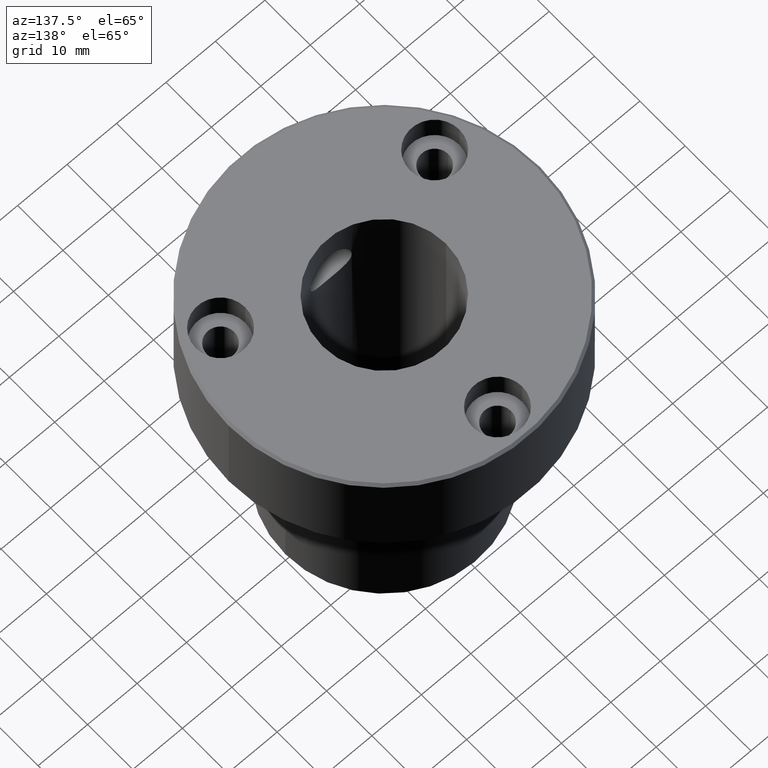
[diagram: clean part render]
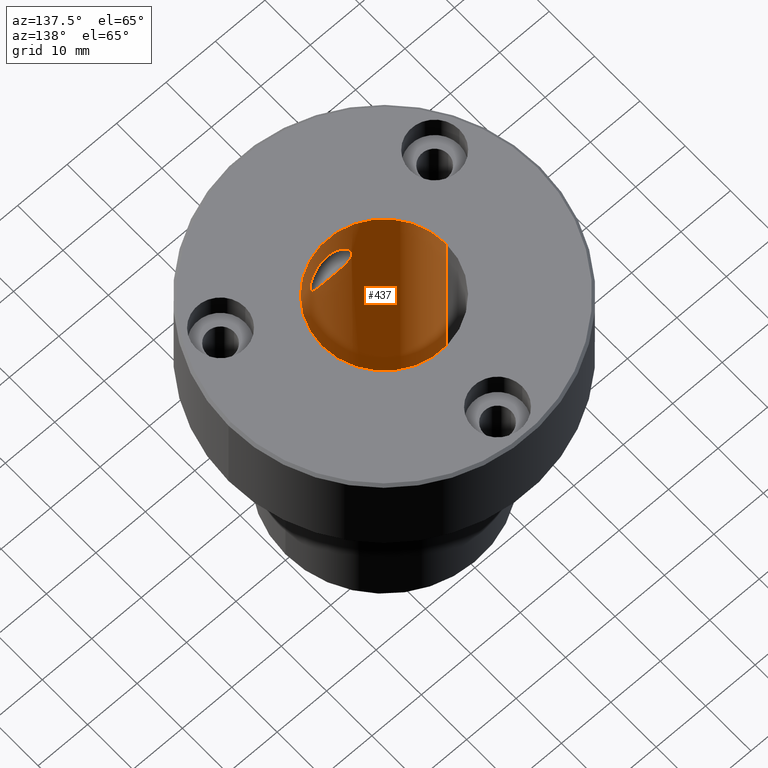
[diagram: same view with one face highlighted and labeled with its STEP entity id]
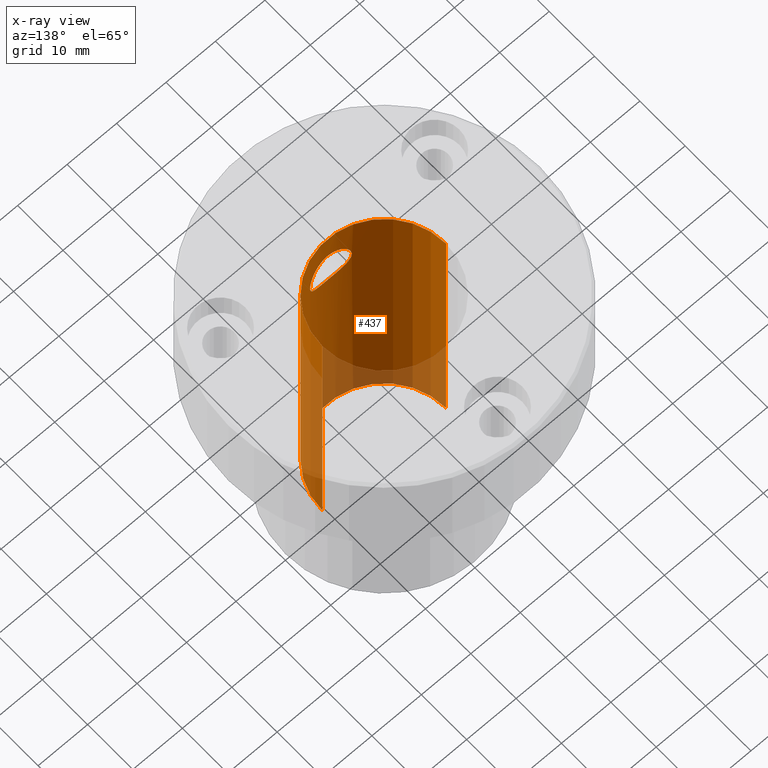
[diagram: x-ray of the same camera — body ghosted, the highlighted face saturated]
A machine part, auxiliary view. The second image highlights one B-rep face of the part: STEP entity #437.
The next image is the same camera in x-ray: the body ghosted, the highlighted face saturated — about 26% of this face is hidden behind the body in this view.
In plain terms, the highlighted cylindrical surface (partial cylindrical patch) has radius 12.5 mm, axis along (-0, -0, -1).
Its self-contained STEP definition (entity closure, byte-faithful):
#2 = CARTESIAN_POINT ( 'NONE',  ( 3.997887047556716755, -11.84395250877099315, -11.61754209422305451 ) ) ;
#17 = CARTESIAN_POINT ( 'NONE',  ( -0.5551595441013111865, -12.49067315568301595, -6.061012140902603207 ) ) ;
#24 = CARTESIAN_POINT ( 'NONE',  ( 4.189025247396950036, -11.77732597393059422, -10.80443429185321946 ) ) ;
#39 = VERTEX_POINT ( 'NONE', #786 ) ;
#55 = CARTESIAN_POINT ( 'NONE',  ( 2.575482729304202856, -12.23399655039528078, -6.900355630761246140 ) ) ;
#56 = DIRECTION ( 'NONE',  ( -0.000000000000000000, -0.000000000000000000, -1.000000000000000000 ) ) ;
#66 = CARTESIAN_POINT ( 'NONE',  ( 2.786254725433419566, -12.18715360744156584, -7.073512358405147360 ) ) ;
#78 = CARTESIAN_POINT ( 'NONE',  ( 0.000000000000000000, 0.000000000000000000, 0.000000000000000000 ) ) ;
#98 = CARTESIAN_POINT ( 'NONE',  ( 3.787002939515706768, -11.91305672827691531, -12.12400132353025128 ) ) ;
#100 = CARTESIAN_POINT ( 'NONE',  ( 0.000000000000000000, 0.000000000000000000, 0.000000000000000000 ) ) ;
#111 = EDGE_CURVE ( 'NONE', #147, #334, #1177, .T. ) ;
#112 = CARTESIAN_POINT ( 'NONE',  ( -4.189124788445370839, -11.77729014235656280, -10.80362458089182986 ) ) ;
#122 = CARTESIAN_POINT ( 'NONE',  ( 3.655198727722483110, -11.95469286503901074, -8.130474772784408444 ) ) ;
#146 = CARTESIAN_POINT ( 'NONE',  ( -3.348655338189170827, -12.04417417198613194, -12.82695504705460365 ) ) ;
#147 = VERTEX_POINT ( 'NONE', #667 ) ;
#167 = ORIENTED_EDGE ( 'NONE', *, *, #251, .T. ) ;
#175 = DIRECTION ( 'NONE',  ( -1.000000000000000000, 0.000000000000000000, 0.000000000000000000 ) ) ;
#192 = CARTESIAN_POINT ( 'NONE',  ( 2.575404253866937498, -12.23402530770396446, -13.59976436228301466 ) ) ;
#197 = CARTESIAN_POINT ( 'NONE',  ( 0.5565299237593437365, -12.49055583874920927, -14.43863110669369476 ) ) ;
#225 = CARTESIAN_POINT ( 'NONE',  ( 3.985586130678573467E-15, -12.50000000000000000, -6.033599999999989194 ) ) ;
#237 = ORIENTED_EDGE ( 'NONE', *, *, #111, .T. ) ;
#251 = EDGE_CURVE ( 'NONE', #411, #352, #963, .T. ) ;
#277 = CARTESIAN_POINT ( 'NONE',  ( 1.877113919933425246, -12.36092773482146967, -14.03559633629362935 ) ) ;
#286 = CARTESIAN_POINT ( 'NONE',  ( 3.657565027193406593, -11.95399429861023854, -12.36587499254165756 ) ) ;
#290 = CARTESIAN_POINT ( 'NONE',  ( -2.788668295020203747, -12.18658724808627447, -13.42427693191812921 ) ) ;
#293 = CARTESIAN_POINT ( 'NONE',  ( -4.216440303120227107, -11.76739695820874232, -9.972775020323856765 ) ) ;
#297 = CARTESIAN_POINT ( 'NONE',  ( 1.367298144276453797, -12.42765411968584743, -14.24809855736770636 ) ) ;
#299 = CARTESIAN_POINT ( 'NONE',  ( -1.365816132105685865, -12.42780682705813078, -6.251435308841912786 ) ) ;
#301 = DIRECTION ( 'NONE',  ( -0.000000000000000000, -0.000000000000000000, -1.000000000000000000 ) ) ;
#304 = CARTESIAN_POINT ( 'NONE',  ( 2.789934311408776235, -12.18629192073936984, -13.42313091155149607 ) ) ;
#330 = B_SPLINE_CURVE_WITH_KNOTS ( 'NONE', 3,
 ( #225, #1183, #17, #396, #299, #520, #514, #896, #765, #1189, #899, #675, #1163, #1076, #293, #585, #112, #812, #713, #623, #1011, #146, #463, #290, #851, #1205, #1120, #538, #942, #1053, #570, #1131 ),
 .UNSPECIFIED., .F., .F.,
 ( 4, 2, 2, 2, 2, 2, 2, 2, 2, 2, 2, 2, 2, 2, 2, 4 ),
 ( 0.01328052445276271115, 0.01411034831862422421, 0.01494017218448573554, 0.01576999605034724861, 0.01659981991620875993, 0.01825946764793178606, 0.01908929151379330086, 0.01991911537965481566, 0.02074893924551633045, 0.02157876311137784525, 0.02240858697723936352, 0.02323841084310087832, 0.02406823470896239311, 0.02489805857482391138, 0.02572788244068542618, 0.02655770630654694098 ),
 .UNSPECIFIED. ) ;
#333 = ORIENTED_EDGE ( 'NONE', *, *, #613, .T. ) ;
#334 = VERTEX_POINT ( 'NONE', #937 ) ;
#350 = EDGE_CURVE ( 'NONE', #39, #931, #984, .T. ) ;
#352 = VERTEX_POINT ( 'NONE', #473 ) ;
#353 = EDGE_LOOP ( 'NONE', ( #167, #333 ) ) ;
#356 = LINE ( 'NONE', #1017, #986 ) ;
#392 = CARTESIAN_POINT ( 'NONE',  ( 4.079951695410066748, -11.81555473867688555, -11.34969271636779986 ) ) ;
#396 = CARTESIAN_POINT ( 'NONE',  ( -1.102107070064511474, -12.45433571121401961, -6.170639583318731525 ) ) ;
#401 = EDGE_CURVE ( 'NONE', #39, #147, #495, .T. ) ;
#411 = VERTEX_POINT ( 'NONE', #889 ) ;
#429 = CARTESIAN_POINT ( 'NONE',  ( 0.2766148255342067430, -12.50000000000000355, -6.033599999999990970 ) ) ;
#435 = CARTESIAN_POINT ( 'NONE',  ( 2.119914058455546702, -12.32110982293357893, -6.594977007722158113 ) ) ;
#437 = ADVANCED_FACE ( 'NONE', ( #1109, #726 ), #911, .F. ) ;
#463 = CARTESIAN_POINT ( 'NONE',  ( -3.175073777574319855, -12.09167011300878158, -13.03776100251050529 ) ) ;
#473 = CARTESIAN_POINT ( 'NONE',  ( 3.985586130678573467E-15, -12.50000000000000000, -6.033599999999989194 ) ) ;
#477 = CARTESIAN_POINT ( 'NONE',  ( 3.349423021886364538, -12.04396641641830357, -12.82605790553494174 ) ) ;
#495 = LINE ( 'NONE', #1184, #739 ) ;
#514 = CARTESIAN_POINT ( 'NONE',  ( -2.121242991461144811, -12.32087695536391792, -6.595763639902799902 ) ) ;
#518 = CARTESIAN_POINT ( 'NONE',  ( 4.079901612494627017, -11.81557106539860946, -9.150461023589301135 ) ) ;
#520 = CARTESIAN_POINT ( 'NONE',  ( -1.874658416002046080, -12.36129006458086899, -6.463229724500179074 ) ) ;
#526 = CARTESIAN_POINT ( 'NONE',  ( 1.365440354459258820, -12.42783661136015461, -6.251349917516190402 ) ) ;
#537 = ORIENTED_EDGE ( 'NONE', *, *, #772, .F. ) ;
#538 = CARTESIAN_POINT ( 'NONE',  ( -1.366828589961371687, -12.42770703100511298, -14.24826287456246199 ) ) ;
#570 = CARTESIAN_POINT ( 'NONE',  ( -0.2807378495748726888, -12.50000000000000355, -14.46640000000000370 ) ) ;
#585 = CARTESIAN_POINT ( 'NONE',  ( -4.216359607960542988, -11.76742587222012837, -10.52844959237146050 ) ) ;
#598 = DIRECTION ( 'NONE',  ( -0.000000000000000000, -0.000000000000000000, -1.000000000000000000 ) ) ;
#603 = CARTESIAN_POINT ( 'NONE',  ( 3.999534841815355346, -11.84340931652505624, -8.886560005951096741 ) ) ;
#606 = CARTESIAN_POINT ( 'NONE',  ( 1.873181017979292262, -12.36150246022431531, -6.462544030933737638 ) ) ;
#609 = CARTESIAN_POINT ( 'NONE',  ( 4.188602135190714115, -11.77747549019724538, -9.693048223489389770 ) ) ;
#613 = EDGE_CURVE ( 'NONE', #352, #411, #330, .T. ) ;
#623 = CARTESIAN_POINT ( 'NONE',  ( -3.786803791266315500, -11.91312231297582080, -12.12449420870354366 ) ) ;
#654 = CARTESIAN_POINT ( 'NONE',  ( -12.50000000000000000, 0.000000000000000000, 0.000000000000000000 ) ) ;
#667 = CARTESIAN_POINT ( 'NONE',  ( 12.50000000000000000, 1.530808498934191521E-15, -58.00000000000000000 ) ) ;
#674 = DIRECTION ( 'NONE',  ( -1.000000000000000000, 0.000000000000000000, 0.000000000000000000 ) ) ;
#675 = CARTESIAN_POINT ( 'NONE',  ( -3.999571325850275194, -11.84339450430635488, -8.886775845636389448 ) ) ;
#713 = CARTESIAN_POINT ( 'NONE',  ( -3.998152425378846520, -11.84386522132485986, -11.61689014754270310 ) ) ;
#726 = FACE_OUTER_BOUND ( 'NONE', #1145, .T. ) ;
#739 = VECTOR ( 'NONE', #301, 1000.000000000000000 ) ;
#744 = CARTESIAN_POINT ( 'NONE',  ( 0.000000000000000000, 0.000000000000000000, -58.00000000000000000 ) ) ;
#752 = ORIENTED_EDGE ( 'NONE', *, *, #350, .F. ) ;
#759 = AXIS2_PLACEMENT_3D ( 'NONE', #78, #1254, #858 ) ;
#765 = CARTESIAN_POINT ( 'NONE',  ( -2.787446251298401734, -12.18689147727475053, -7.074469595197180105 ) ) ;
#772 = EDGE_CURVE ( 'NONE', #931, #334, #356, .T. ) ;
#774 = CARTESIAN_POINT ( 'NONE',  ( 3.469446951953614189E-15, -12.50000000000000000, -14.46640000000000015 ) ) ;
#786 = CARTESIAN_POINT ( 'NONE',  ( 12.50000000000000000, 1.530808498934191521E-15, 0.000000000000000000 ) ) ;
#794 = ORIENTED_EDGE ( 'NONE', *, *, #401, .T. ) ;
#796 = CARTESIAN_POINT ( 'NONE',  ( 4.216260489854232851, -11.76746138738044323, -10.52945059958980600 ) ) ;
#802 = CARTESIAN_POINT ( 'NONE',  ( 4.216538451298899481, -11.76736179058473120, -9.974775283386751568 ) ) ;
#812 = CARTESIAN_POINT ( 'NONE',  ( -4.080215725952912820, -11.81546314031333544, -11.34868389422146429 ) ) ;
#818 = AXIS2_PLACEMENT_3D ( 'NONE', #100, #598, #674 ) ;
#831 = CARTESIAN_POINT ( 'NONE',  ( 1.102225746191251687, -12.45431612838513580, -6.170699921103234509 ) ) ;
#851 = CARTESIAN_POINT ( 'NONE',  ( -2.573365844949424552, -12.23444139310238121, -13.60125958634423604 ) ) ;
#858 = DIRECTION ( 'NONE',  ( -1.000000000000000000, 0.000000000000000000, 0.000000000000000000 ) ) ;
#889 = CARTESIAN_POINT ( 'NONE',  ( 3.469446951953614189E-15, -12.50000000000000000, -14.46640000000000015 ) ) ;
#896 = CARTESIAN_POINT ( 'NONE',  ( -2.576371150889301909, -12.23380531441080521, -6.901055853385312133 ) ) ;
#899 = CARTESIAN_POINT ( 'NONE',  ( -3.680025843897215765, -11.94812397362195355, -8.118538892997353429 ) ) ;
#911 = CYLINDRICAL_SURFACE ( 'NONE', #818, 12.50000000000000000 ) ;
#931 = VERTEX_POINT ( 'NONE', #654 ) ;
#937 = CARTESIAN_POINT ( 'NONE',  ( -12.50000000000000000, 0.000000000000000000, -58.00000000000000000 ) ) ;
#942 = CARTESIAN_POINT ( 'NONE',  ( -1.097997171940167105, -12.45463879240977967, -14.33027800822539355 ) ) ;
#952 = CARTESIAN_POINT ( 'NONE',  ( 1.098333347631239132, -12.45461258226977286, -14.33019851986184534 ) ) ;
#963 = B_SPLINE_CURVE_WITH_KNOTS ( 'NONE', 3,
 ( #774, #1068, #197, #952, #297, #277, #965, #192, #304, #1051, #477, #286, #98, #2, #392, #24, #796, #802, #609, #518, #603, #980, #122, #1112, #1002, #66, #55, #435, #606, #526, #831, #1206, #429, #1223 ),
 .UNSPECIFIED., .F., .F.,
 ( 4, 2, 2, 2, 2, 2, 2, 2, 2, 2, 2, 2, 2, 2, 2, 2, 4 ),
 ( 0.000000000000000000, 0.0008300327782976694470, 0.001660065556595338894, 0.002490098334893008341, 0.003320131113190677788, 0.004150163891488346801, 0.004980196669786016682, 0.005810229448083686563, 0.006640262226381355576, 0.007470295004679024589, 0.008300327782976693602, 0.009130360561274364350, 0.009960393339572033364, 0.01079042611786970238, 0.01162045889616737313, 0.01245049167446504214, 0.01328052445276271115 ),
 .UNSPECIFIED. ) ;
#965 = CARTESIAN_POINT ( 'NONE',  ( 2.118564157178445928, -12.32135415497402597, -13.90586026340941750 ) ) ;
#980 = CARTESIAN_POINT ( 'NONE',  ( 3.786003108556399877, -11.91338758085410277, -8.373453163316105119 ) ) ;
#984 = CIRCLE ( 'NONE', #759, 12.50000000000000000 ) ;
#986 = VECTOR ( 'NONE', #56, 1000.000000000000000 ) ;
#1002 = CARTESIAN_POINT ( 'NONE',  ( 3.174371480055763417, -12.09186892721653095, -7.461334577470172036 ) ) ;
#1011 = CARTESIAN_POINT ( 'NONE',  ( -3.655982330687767679, -11.95447268836310428, -12.36848603635282018 ) ) ;
#1017 = CARTESIAN_POINT ( 'NONE',  ( -12.50000000000000000, 0.000000000000000000, 0.000000000000000000 ) ) ;
#1030 = AXIS2_PLACEMENT_3D ( 'NONE', #744, #1143, #175 ) ;
#1051 = CARTESIAN_POINT ( 'NONE',  ( 3.175671136755555679, -12.09150764258251165, -13.03704253196776541 ) ) ;
#1053 = CARTESIAN_POINT ( 'NONE',  ( -0.5565074715218824020, -12.49055341740818648, -14.43862338342046492 ) ) ;
#1068 = CARTESIAN_POINT ( 'NONE',  ( 0.2808085267757748915, -12.50000000000000178, -14.46639999999999837 ) ) ;
#1076 = CARTESIAN_POINT ( 'NONE',  ( -4.188332383362253886, -11.77757108505735495, -9.691355009970259005 ) ) ;
#1109 = FACE_BOUND ( 'NONE', #353, .T. ) ;
#1112 = CARTESIAN_POINT ( 'NONE',  ( 3.350676545190136579, -12.04359273331971103, -7.675930922166218195 ) ) ;
#1120 = CARTESIAN_POINT ( 'NONE',  ( -1.876767304475097653, -12.36098163285113216, -14.03577216605722100 ) ) ;
#1131 = CARTESIAN_POINT ( 'NONE',  ( 3.469446951953614189E-15, -12.50000000000000000, -14.46640000000000015 ) ) ;
#1143 = DIRECTION ( 'NONE',  ( 0.000000000000000000, 0.000000000000000000, -1.000000000000000000 ) ) ;
#1145 = EDGE_LOOP ( 'NONE', ( #752, #794, #237, #537 ) ) ;
#1163 = CARTESIAN_POINT ( 'NONE',  ( -4.079761583855238349, -11.81561907967580893, -9.150110097643739948 ) ) ;
#1177 = CIRCLE ( 'NONE', #1030, 12.50000000000000000 ) ;
#1183 = CARTESIAN_POINT ( 'NONE',  ( -0.2765452038534774171, -12.50000000000000000, -6.033599999999989194 ) ) ;
#1184 = CARTESIAN_POINT ( 'NONE',  ( 12.50000000000000000, 1.530808498934191521E-15, 0.000000000000000000 ) ) ;
#1189 = CARTESIAN_POINT ( 'NONE',  ( -3.371434677537228808, -12.04342767430008365, -7.658718240345709916 ) ) ;
#1205 = CARTESIAN_POINT ( 'NONE',  ( -2.117845489963228633, -12.32146494755601296, -13.90621157315311507 ) ) ;
#1206 = CARTESIAN_POINT ( 'NONE',  ( 0.5561038166410524619, -12.49062209685483538, -6.061164926334378755 ) ) ;
#1223 = CARTESIAN_POINT ( 'NONE',  ( 3.985586130678573467E-15, -12.50000000000000000, -6.033599999999989194 ) ) ;
#1254 = DIRECTION ( 'NONE',  ( 0.000000000000000000, 0.000000000000000000, -1.000000000000000000 ) ) ;